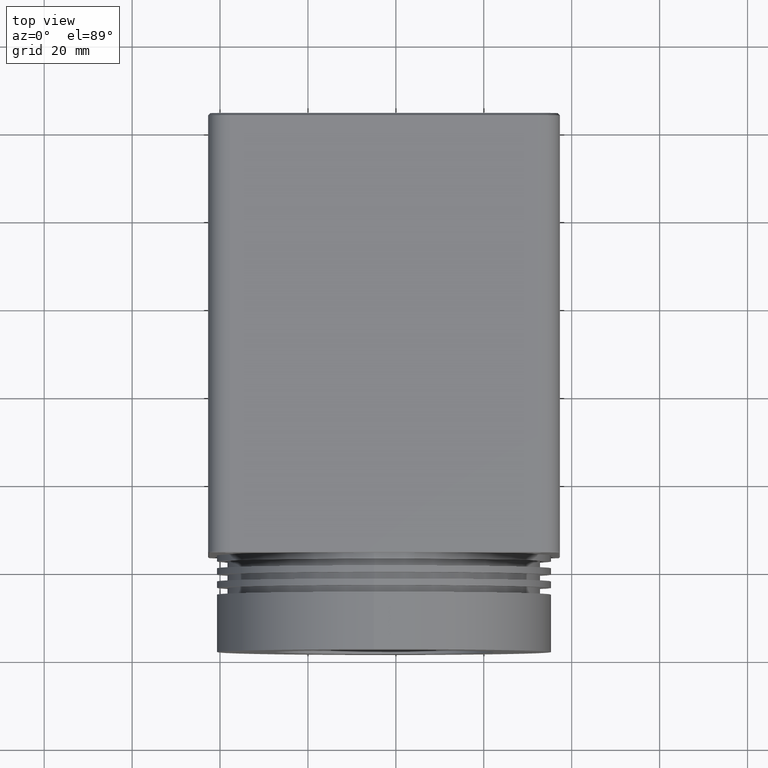
[diagram: clean part render]
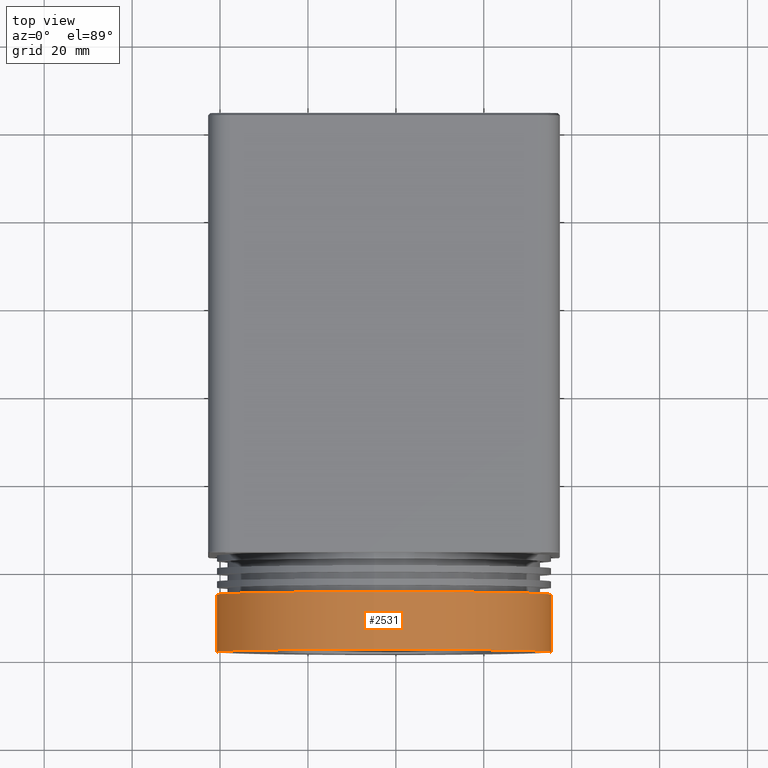
[diagram: same view with one face highlighted and labeled with its STEP entity id]
A machine part, top view. The second image highlights one B-rep face of the part: STEP entity #2531.
In plain terms, the highlighted cylindrical surface (bore or boss wall) has radius 38 mm, axis along (0, -1, -0).
Its self-contained STEP definition (entity closure, byte-faithful):
#299 = CARTESIAN_POINT ( 'NONE',  ( 15.04876119827762437, -45.30317004856068053, 37.93318247040088664 ) ) ;
#424 = CYLINDRICAL_SURFACE ( 'NONE', #2582, 38.00000000000000000 ) ;
#664 = DIRECTION ( 'NONE',  ( 0.000000000000000000, -1.000000000000000000, -0.000000000000000000 ) ) ;
#701 = ORIENTED_EDGE ( 'NONE', *, *, #1151, .F. ) ;
#971 = AXIS2_PLACEMENT_3D ( 'NONE', #3262, #1947, #3291 ) ;
#1024 = CARTESIAN_POINT ( 'NONE',  ( 17.30124153498872630, -58.39537246049660979, -6.600080725005508242E-15 ) ) ;
#1151 = EDGE_CURVE ( 'NONE', #1392, #1392, #2187, .T. ) ;
#1273 = DIRECTION ( 'NONE',  ( 0.000000000000000000, 1.000000000000000000, 0.000000000000000000 ) ) ;
#1392 = VERTEX_POINT ( 'NONE', #299 ) ;
#1558 = EDGE_LOOP ( 'NONE', ( #701 ) ) ;
#1650 = CIRCLE ( 'NONE', #2799, 38.00000000000000000 ) ;
#1846 = ORIENTED_EDGE ( 'NONE', *, *, #2213, .T. ) ;
#1947 = DIRECTION ( 'NONE',  ( 0.000000000000000000, 1.000000000000000000, 0.000000000000000000 ) ) ;
#2067 = DIRECTION ( 'NONE',  ( -0.05927579833450265928, 0.000000000000000000, 0.9982416439579182565 ) ) ;
#2187 = CIRCLE ( 'NONE', #971, 38.00000000000000000 ) ;
#2213 = EDGE_CURVE ( 'NONE', #3272, #3272, #1650, .T. ) ;
#2230 = FACE_OUTER_BOUND ( 'NONE', #1558, .T. ) ;
#2529 = CARTESIAN_POINT ( 'NONE',  ( 17.30124153498872630, -36.39537246049660979, -6.600080725005508242E-15 ) ) ;
#2531 = ADVANCED_FACE ( 'NONE', ( #2230, #3035 ), #424, .T. ) ;
#2582 = AXIS2_PLACEMENT_3D ( 'NONE', #2529, #664, #3002 ) ;
#2799 = AXIS2_PLACEMENT_3D ( 'NONE', #1024, #1273, #2067 ) ;
#2820 = EDGE_LOOP ( 'NONE', ( #1846 ) ) ;
#3002 = DIRECTION ( 'NONE',  ( 0.05927579833450265928, 0.000000000000000000, -0.9982416439579182565 ) ) ;
#3035 = FACE_OUTER_BOUND ( 'NONE', #2820, .T. ) ;
#3262 = CARTESIAN_POINT ( 'NONE',  ( 17.30124153498872630, -45.30317004856068053, -6.600080725005508242E-15 ) ) ;
#3272 = VERTEX_POINT ( 'NONE', #3324 ) ;
#3291 = DIRECTION ( 'NONE',  ( -0.05927579833450265928, 0.000000000000000000, 0.9982416439579182565 ) ) ;
#3324 = CARTESIAN_POINT ( 'NONE',  ( 15.04876119827762437, -58.39537246049660979, 37.93318247040088664 ) ) ;